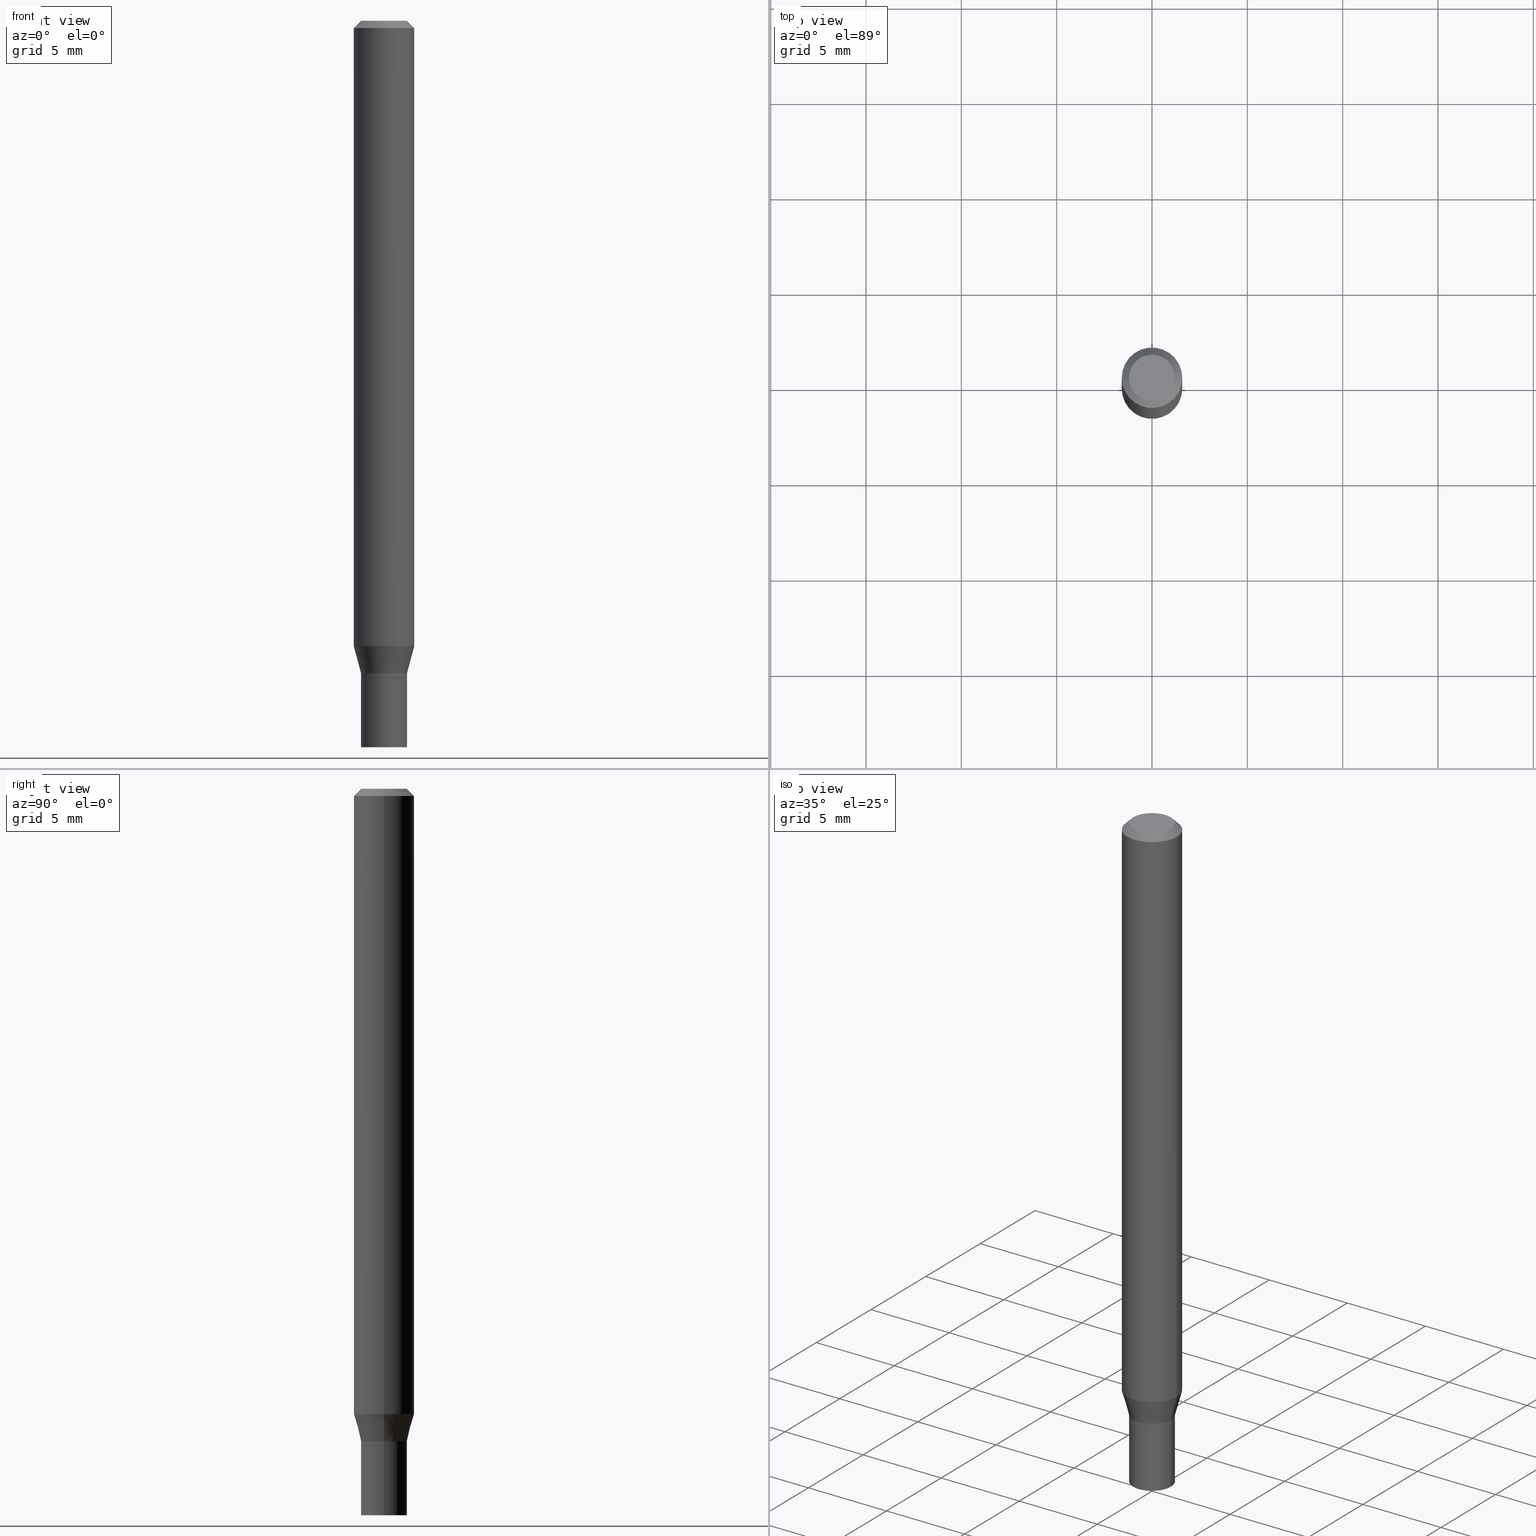
[diagram: canonical four-view strip — front | top / right | iso, engineering-drawing reading convention]
A machine part, canonical four-view strip (front | top / right | iso — engineering-drawing reading convention). The complete STEP part file that produces these views, byte-faithful:
ISO-10303-21;
HEADER;
FILE_DESCRIPTION (( 'STEP AP203' ),
    '1' );
FILE_NAME ('02430.STEP',
    '2024-03-18T20:33:25',
    ( '' ),
    ( '' ),
    'SwSTEP 2.0',
    'SolidWorks 2023',
    '' );
FILE_SCHEMA (( 'CONFIG_CONTROL_DESIGN' ));
ENDSEC;

DATA;
#1 = CONICAL_SURFACE ( 'NONE', #341, 0.06250000000000000000, 0.7853981633974457255 ) ;
#2 = CIRCLE ( 'NONE', #447, 0.04699999999999999317 ) ;
#3 = CC_DESIGN_PERSON_AND_ORGANIZATION_ASSIGNMENT ( #320, #48, ( #176 ) ) ;
#4 = DIRECTION ( 'NONE',  ( -2.445468806185136597E-29, 3.491481338843145583E-15, 1.000000000000000000 ) ) ;
#5 = DIRECTION ( 'NONE',  ( 1.000000000000000000, -6.982962677686266711E-15, 0.000000000000000000 ) ) ;
#6 = ORIENTED_EDGE ( 'NONE', *, *, #49, .F. ) ;
#7 = ADVANCED_FACE ( 'NONE', ( #379 ), #59, .T. ) ;
#8 = VECTOR ( 'NONE', #17, 39.37007874015748143 ) ;
#9 = ORIENTED_EDGE ( 'NONE', *, *, #111, .T. ) ;
#10 = DIRECTION ( 'NONE',  ( -2.445468806185136877E-29, 3.491481338843145188E-15, 1.000000000000000000 ) ) ;
#11 = CARTESIAN_POINT ( 'NONE',  ( -0.04749999999999993811, -4.214498965626852086E-15, -1.347000000000000197 ) ) ;
#12 = CARTESIAN_POINT ( 'NONE',  ( -0.04749999999999999362, 3.375077994860475429E-16, -2.336494167871079910E-30 ) ) ;
#13 = CIRCLE ( 'NONE', #257, 0.06250000000000000000 ) ;
#14 = CIRCLE ( 'NONE', #458, 0.04749999999999999362 ) ;
#15 = ORIENTED_EDGE ( 'NONE', *, *, #252, .F. ) ;
#16 = APPROVAL_DATE_TIME ( #89, #31 ) ;
#17 = DIRECTION ( 'NONE',  ( 0.7071067811865456854, -7.319954787623249734E-15, -0.7071067811865493491 ) ) ;
#18 = DIRECTION ( 'NONE',  ( -2.445468806185136597E-29, 3.491481338843145583E-15, 1.000000000000000000 ) ) ;
#19 = DIRECTION ( 'NONE',  ( 1.000000000000000000, -6.982962677686270655E-15, 0.000000000000000000 ) ) ;
#20 = CARTESIAN_POINT ( 'NONE',  ( 3.157147274436261961E-29, -4.507569577168097497E-15, -1.291019237886466442 ) ) ;
#21 = PERSON_AND_ORGANIZATION_ROLE ( 'design_owner' ) ;
#22 = FACE_OUTER_BOUND ( 'NONE', #236, .T. ) ;
#23 = APPROVAL_ROLE ( '' ) ;
#24 = ADVANCED_FACE ( 'NONE', ( #97 ), #439, .T. ) ;
#25 = DIRECTION ( 'NONE',  ( 1.000000000000000000, -6.982962677686265922E-15, 4.876176775795936353E-29 ) ) ;
#26 = DIRECTION ( 'NONE',  ( 1.000000000000000000, -6.982962677686266711E-15, 0.000000000000000000 ) ) ;
#27 = AXIS2_PLACEMENT_3D ( 'NONE', #36, #403, #19 ) ;
#28 = EDGE_CURVE ( 'NONE', #382, #120, #391, .T. ) ;
#29 = AXIS2_PLACEMENT_3D ( 'NONE', #155, #454, #358 ) ;
#30 = VERTEX_POINT ( 'NONE', #76 ) ;
#31 = APPROVAL ( #415, 'UNSPECIFIED' ) ;
#32 = AXIS2_PLACEMENT_3D ( 'NONE', #124, #55, #256 ) ;
#33 = APPROVAL_PERSON_ORGANIZATION ( #373, #202, #90 ) ;
#34 = ORIENTED_EDGE ( 'NONE', *, *, #310, .F. ) ;
#35 = CYLINDRICAL_SURFACE ( 'NONE', #268, 0.04749999999999999362 ) ;
#36 = CARTESIAN_POINT ( 'NONE',  ( 3.294046481931379390E-29, -4.703025363421717574E-15, -1.347000000000000197 ) ) ;
#37 = ORIENTED_EDGE ( 'NONE', *, *, #276, .T. ) ;
#38 = DESIGN_CONTEXT ( 'detailed design', #444, 'design' ) ;
#39 = DIRECTION ( 'NONE',  ( 1.000000000000000000, -6.982962677686270655E-15, 0.000000000000000000 ) ) ;
#40 = CARTESIAN_POINT ( 'NONE',  ( -0.04749999999999999362, 3.578768372314211492E-16, 7.877379304411263442E-17 ) ) ;
#41 = FACE_OUTER_BOUND ( 'NONE', #133, .T. ) ;
#42 = APPROVAL_DATE_TIME ( #218, #202 ) ;
#43 = FACE_OUTER_BOUND ( 'NONE', #66, .T. ) ;
#44 = PLANE ( 'NONE',  #277 ) ;
#45 = CONICAL_SURFACE ( 'NONE', #249, 0.04749999999999993811, 0.2617993877991481311 ) ;
#46 = CARTESIAN_POINT ( 'NONE',  ( 0.06250000000000000000, -4.811533449433679005E-16, -0.01499999999999999944 ) ) ;
#47 = PLANE ( 'NONE',  #115 ) ;
#48 = PERSON_AND_ORGANIZATION_ROLE ( 'creator' ) ;
#49 = EDGE_CURVE ( 'NONE', #77, #177, #214, .T. ) ;
#50 = PRODUCT_DEFINITION ( 'UNKNOWN', '', #176, #38 ) ;
#51 = CARTESIAN_POINT ( 'NONE',  ( 0.04749999999999999362, -4.035134999187576651E-16, 7.877379304411762643E-17 ) ) ;
#52 = COORDINATED_UNIVERSAL_TIME_OFFSET ( 5, 0, .BEHIND. ) ;
#53 = DIRECTION ( 'NONE',  ( 1.000000000000000000, -6.982962677686266711E-15, 4.876176775795935793E-29 ) ) ;
#54 = CALENDAR_DATE ( 2024, 18, 3 ) ;
#55 = DIRECTION ( 'NONE',  ( 2.438088387897960049E-29, -3.491481338843145188E-15, -1.000000000000000000 ) ) ;
#56 = CARTESIAN_POINT ( 'NONE',  ( -0.04699999999999999317, -4.403985091002901839E-15, -1.356999999999999984 ) ) ;
#57 = CARTESIAN_POINT ( 'NONE',  ( 0.06250000000000000000, -4.364351673553916694E-16, 3.047610484872459871E-30 ) ) ;
#58 = DIRECTION ( 'NONE',  ( 2.445468806185136597E-29, -3.491481338843145583E-15, -1.000000000000000000 ) ) ;
#59 = CYLINDRICAL_SURFACE ( 'NONE', #74, 0.06250000000000000000 ) ;
#60 = DIRECTION ( 'NONE',  ( 1.000000000000000000, -6.982962677686261977E-15, 0.000000000000000000 ) ) ;
#61 =( NAMED_UNIT ( * ) PLANE_ANGLE_UNIT ( ) SI_UNIT ( $, .RADIAN. ) );
#62 = CARTESIAN_POINT ( 'NONE',  ( -0.04749999999999999362, -4.650073293051385418E-15, -1.500000000000000222 ) ) ;
#63 = VECTOR ( 'NONE', #280, 39.37007874015748143 ) ;
#64 = APPROVAL_STATUS ( 'not_yet_approved' ) ;
#65 = ORIENTED_EDGE ( 'NONE', *, *, #69, .T. ) ;
#66 = EDGE_LOOP ( 'NONE', ( #296, #398 ) ) ;
#67 = CIRCLE ( 'NONE', #240, 0.04749999999999991729 ) ;
#68 = LOCAL_TIME ( 16, 33, 25.00000000000000000, #289 ) ;
#69 = EDGE_CURVE ( 'NONE', #347, #177, #221, .T. ) ;
#70 = DIRECTION ( 'NONE',  ( 1.000000000000000000, -6.982962677686261977E-15, 0.000000000000000000 ) ) ;
#71 = ORIENTED_EDGE ( 'NONE', *, *, #49, .T. ) ;
#72 = ORIENTED_EDGE ( 'NONE', *, *, #442, .F. ) ;
#73 = EDGE_LOOP ( 'NONE', ( #206, #167 ) ) ;
#74 = AXIS2_PLACEMENT_3D ( 'NONE', #200, #199, #465 ) ;
#75 = AXIS2_PLACEMENT_3D ( 'NONE', #340, #134, #270 ) ;
#76 = CARTESIAN_POINT ( 'NONE',  ( -0.04699999999999999317, -4.401335863828790638E-15, -1.356999999999999984 ) ) ;
#77 = VERTEX_POINT ( 'NONE', #229 ) ;
#78 = ADVANCED_FACE ( 'NONE', ( #81 ), #449, .T. ) ;
#79 = DIRECTION ( 'NONE',  ( -2.445468806185136877E-29, 3.491481338843145188E-15, 1.000000000000000000 ) ) ;
#80 = EDGE_LOOP ( 'NONE', ( #345, #139, #299, #383 ) ) ;
#81 = FACE_OUTER_BOUND ( 'NONE', #461, .T. ) ;
#82 = ADVANCED_FACE ( 'NONE', ( #370 ), #374, .T. ) ;
#83 = FACE_OUTER_BOUND ( 'NONE', #73, .T. ) ;
#84 = VECTOR ( 'NONE', #96, 39.37007874015748143 ) ;
#85 =( LENGTH_UNIT ( ) NAMED_UNIT ( * ) SI_UNIT ( $, .METRE. ) );
#86 = LINE ( 'NONE', #159, #352 ) ;
#87 = ADVANCED_FACE ( 'NONE', ( #43 ), #363, .F. ) ;
#88 = DIRECTION ( 'NONE',  ( -2.445468806185136597E-29, 3.491481338843145583E-15, 1.000000000000000000 ) ) ;
#89 = DATE_AND_TIME ( #164, #386 ) ;
#90 = APPROVAL_ROLE ( '' ) ;
#91 = DIRECTION ( 'NONE',  ( -2.445468806185136877E-29, 3.491481338843145188E-15, 1.000000000000000000 ) ) ;
#92 = CARTESIAN_POINT ( 'NONE',  ( -0.06250000000000000000, -1.835881688775309869E-15, -0.01499999999999999944 ) ) ;
#93 = LINE ( 'NONE', #180, #84 ) ;
#94 = AXIS2_PLACEMENT_3D ( 'NONE', #405, #118, #401 ) ;
#95 = DIRECTION ( 'NONE',  ( -2.445468806185136597E-29, 3.491481338843145583E-15, 1.000000000000000000 ) ) ;
#96 = DIRECTION ( 'NONE',  ( 0.2588190451025195182, 1.565188264969636759E-15, 0.9659258262890685343 ) ) ;
#97 = FACE_OUTER_BOUND ( 'NONE', #448, .T. ) ;
#98 = MECHANICAL_CONTEXT ( 'NONE', #418, 'mechanical' ) ;
#99 = ORIENTED_EDGE ( 'NONE', *, *, #413, .F. ) ;
#100 = CIRCLE ( 'NONE', #302, 0.04749999999999999362 ) ;
#101 = ADVANCED_FACE ( 'NONE', ( #410 ), #1, .T. ) ;
#102 =( GEOMETRIC_REPRESENTATION_CONTEXT ( 3 ) GLOBAL_UNCERTAINTY_ASSIGNED_CONTEXT ( ( #317 ) ) GLOBAL_UNIT_ASSIGNED_CONTEXT ( ( #295, #61, #419 ) ) REPRESENTATION_CONTEXT ( 'NONE', 'WORKASPACE' ) );
#103 = EDGE_CURVE ( 'NONE', #347, #130, #93, .T. ) ;
#104 = LINE ( 'NONE', #56, #63 ) ;
#105 = EDGE_CURVE ( 'NONE', #177, #136, #381, .T. ) ;
#106 = CIRCLE ( 'NONE', #195, 0.06250000000000000000 ) ;
#107 = VERTEX_POINT ( 'NONE', #112 ) ;
#108 = CARTESIAN_POINT ( 'NONE',  ( 0.04749999999999999362, -5.568912735454815688E-15, -1.500000000000000222 ) ) ;
#109 = EDGE_CURVE ( 'NONE', #120, #143, #346, .T. ) ;
#110 = ORIENTED_EDGE ( 'NONE', *, *, #210, .F. ) ;
#111 = EDGE_CURVE ( 'NONE', #432, #354, #400, .T. ) ;
#112 = CARTESIAN_POINT ( 'NONE',  ( -0.04749999999999999362, -4.650073293051385418E-15, -1.356999999999999984 ) ) ;
#113 = EDGE_LOOP ( 'NONE', ( #209, #384 ) ) ;
#114 = ORIENTED_EDGE ( 'NONE', *, *, #310, .T. ) ;
#115 = AXIS2_PLACEMENT_3D ( 'NONE', #290, #417, #226 ) ;
#116 = AXIS2_PLACEMENT_3D ( 'NONE', #460, #95, #187 ) ;
#117 = FACE_OUTER_BOUND ( 'NONE', #425, .T. ) ;
#118 = DIRECTION ( 'NONE',  ( -2.445468806185136597E-29, 3.491481338843145583E-15, 1.000000000000000000 ) ) ;
#119 = ORIENTED_EDGE ( 'NONE', *, *, #28, .F. ) ;
#120 = VERTEX_POINT ( 'NONE', #108 ) ;
#121 = CARTESIAN_POINT ( 'NONE',  ( 0.06250000000000000000, -4.888073874380388472E-16, -0.01499999999999999944 ) ) ;
#122 = EDGE_CURVE ( 'NONE', #120, #382, #194, .T. ) ;
#123 = CARTESIAN_POINT ( 'NONE',  ( 0.04699999999999999317, -5.066139422661402938E-15, -1.356999999999999984 ) ) ;
#124 = CARTESIAN_POINT ( 'NONE',  ( 3.316907271901307910E-16, 0.04749999999999526129, -1.357000000000000206 ) ) ;
#125 = DIRECTION ( 'NONE',  ( 1.000000000000000000, -6.982962677686267499E-15, 4.876176775795935793E-29 ) ) ;
#126 = ORGANIZATION ( 'UNSPECIFIED', 'UNSPECIFIED', '' ) ;
#127 = EDGE_CURVE ( 'NONE', #136, #130, #13, .T. ) ;
#128 = DIRECTION ( 'NONE',  ( 2.438088387897960049E-29, -3.491481338843145188E-15, -1.000000000000000000 ) ) ;
#129 = DIRECTION ( 'NONE',  ( 1.000000000000000000, -6.982962677686267499E-15, 4.884662768193073002E-29 ) ) ;
#130 = VERTEX_POINT ( 'NONE', #435 ) ;
#131 = CIRCLE ( 'NONE', #184, 0.04749999999999993811 ) ;
#132 = CONICAL_SURFACE ( 'NONE', #29, 0.04699999999999999317, 0.7853981633974739252 ) ;
#133 = EDGE_LOOP ( 'NONE', ( #351, #71, #175, #34 ) ) ;
#134 = DIRECTION ( 'NONE',  ( 0.000000000000000000, 0.000000000000000000, 1.000000000000000000 ) ) ;
#135 = ORIENTED_EDGE ( 'NONE', *, *, #350, .T. ) ;
#136 = VERTEX_POINT ( 'NONE', #278 ) ;
#137 = AXIS2_PLACEMENT_3D ( 'NONE', #251, #217, #361 ) ;
#138 = CC_DESIGN_APPROVAL ( #31, ( #50 ) ) ;
#139 = ORIENTED_EDGE ( 'NONE', *, *, #127, .T. ) ;
#140 = DIRECTION ( 'NONE',  ( -0.2588190451025195182, 5.211531920934539209E-15, 0.9659258262890685343 ) ) ;
#141 = EDGE_CURVE ( 'NONE', #30, #77, #104, .T. ) ;
#142 = ADVANCED_FACE ( 'NONE', ( #83 ), #453, .F. ) ;
#143 = VERTEX_POINT ( 'NONE', #364 ) ;
#144 = ORIENTED_EDGE ( 'NONE', *, *, #141, .F. ) ;
#145 = CC_DESIGN_PERSON_AND_ORGANIZATION_ASSIGNMENT ( #220, #327, ( #297 ) ) ;
#146 = DIRECTION ( 'NONE',  ( -2.445468806185136597E-29, 3.491481338843145583E-15, 1.000000000000000000 ) ) ;
#147 = ORIENTED_EDGE ( 'NONE', *, *, #252, .T. ) ;
#148 = VECTOR ( 'NONE', #140, 39.37007874015748143 ) ;
#149 = AXIS2_PLACEMENT_3D ( 'NONE', #228, #178, #371 ) ;
#150 = CARTESIAN_POINT ( 'NONE',  ( 3.668203209277705088E-31, -5.237222008264718399E-17, -0.01499999999999999944 ) ) ;
#151 = EDGE_CURVE ( 'NONE', #174, #77, #67, .T. ) ;
#152 = DIRECTION ( 'NONE',  ( -2.445468806185136597E-29, 3.491481338843145583E-15, 1.000000000000000000 ) ) ;
#153 = CARTESIAN_POINT ( 'NONE',  ( 3.668203209277705088E-31, -5.237222008264718399E-17, -0.01499999999999999944 ) ) ;
#154 = CARTESIAN_POINT ( 'NONE',  ( 3.294046481931379390E-29, -4.703025363421717574E-15, -1.347000000000000197 ) ) ;
#155 = CARTESIAN_POINT ( 'NONE',  ( 3.318501169993230375E-29, -4.737940176810148435E-15, -1.356999999999999984 ) ) ;
#156 = COORDINATED_UNIVERSAL_TIME_OFFSET ( 5, 0, .BEHIND. ) ;
#157 = CARTESIAN_POINT ( 'NONE',  ( 3.294046481931379390E-29, -4.703025363421717574E-15, -1.347000000000000197 ) ) ;
#158 = DATE_AND_TIME ( #367, #68 ) ;
#159 = CARTESIAN_POINT ( 'NONE',  ( -0.06250000000000000000, 4.440892098500626162E-16, -3.074334431409316114E-30 ) ) ;
#160 = DIRECTION ( 'NONE',  ( 1.000000000000000000, -6.982962677686265922E-15, 4.876176775795936353E-29 ) ) ;
#161 = VECTOR ( 'NONE', #79, 39.37007874015748143 ) ;
#162 = CARTESIAN_POINT ( 'NONE',  ( 0.04749999999999993811, -5.034716090611815085E-15, -1.347000000000000197 ) ) ;
#163 = VECTOR ( 'NONE', #451, 39.37007874015748143 ) ;
#164 = CALENDAR_DATE ( 2024, 18, 3 ) ;
#165 = FACE_OUTER_BOUND ( 'NONE', #397, .T. ) ;
#166 = DATE_AND_TIME ( #54, #348 ) ;
#167 = ORIENTED_EDGE ( 'NONE', *, *, #434, .T. ) ;
#168 = AXIS2_PLACEMENT_3D ( 'NONE', #188, #288, #25 ) ;
#169 = ORIENTED_EDGE ( 'NONE', *, *, #103, .F. ) ;
#170 = CIRCLE ( 'NONE', #312, 0.06250000000000000000 ) ;
#171 = ORIENTED_EDGE ( 'NONE', *, *, #103, .T. ) ;
#172 = APPROVAL_DATE_TIME ( #304, #267 ) ;
#173 = ADVANCED_FACE ( 'NONE', ( #117 ), #385, .T. ) ;
#174 = VERTEX_POINT ( 'NONE', #318 ) ;
#175 = ORIENTED_EDGE ( 'NONE', *, *, #69, .F. ) ;
#176 = PRODUCT_DEFINITION_FORMATION_WITH_SPECIFIED_SOURCE ( 'ANY', '', #286, .NOT_KNOWN. ) ;
#177 = VERTEX_POINT ( 'NONE', #11 ) ;
#178 = DIRECTION ( 'NONE',  ( -2.445468806185136597E-29, 3.491481338843145583E-15, 1.000000000000000000 ) ) ;
#179 = ORIENTED_EDGE ( 'NONE', *, *, #235, .F. ) ;
#180 = CARTESIAN_POINT ( 'NONE',  ( 0.04749999999999993811, -5.034716090611815085E-15, -1.347000000000000197 ) ) ;
#181 = LINE ( 'NONE', #12, #185 ) ;
#182 = APPROVAL_STATUS ( 'not_yet_approved' ) ;
#183 = EDGE_CURVE ( 'NONE', #342, #316, #100, .T. ) ;
#184 = AXIS2_PLACEMENT_3D ( 'NONE', #154, #409, #462 ) ;
#185 = VECTOR ( 'NONE', #253, 39.37007874015748143 ) ;
#186 = CYLINDRICAL_SURFACE ( 'NONE', #168, 0.04749999999999993117 ) ;
#187 = DIRECTION ( 'NONE',  ( 1.000000000000000000, -6.982962677686272233E-15, 0.000000000000000000 ) ) ;
#188 = CARTESIAN_POINT ( 'NONE',  ( 0.000000000000000000, 0.000000000000000000, 0.000000000000000000 ) ) ;
#189 = LINE ( 'NONE', #46, #8 ) ;
#190 = SECURITY_CLASSIFICATION_LEVEL ( 'unclassified' ) ;
#191 = FACE_OUTER_BOUND ( 'NONE', #113, .T. ) ;
#192 = CALENDAR_DATE ( 2024, 18, 3 ) ;
#193 = LINE ( 'NONE', #123, #239 ) ;
#194 = CIRCLE ( 'NONE', #207, 0.04749999999999999362 ) ;
#195 = AXIS2_PLACEMENT_3D ( 'NONE', #20, #319, #213 ) ;
#196 = PRODUCT_RELATED_PRODUCT_CATEGORY ( 'detail', '', ( #286 ) ) ;
#197 = DIRECTION ( 'NONE',  ( -2.445468806185136597E-29, 3.491481338843145583E-15, 1.000000000000000000 ) ) ;
#198 = PERSON_AND_ORGANIZATION_ROLE ( 'creator' ) ;
#199 = DIRECTION ( 'NONE',  ( -2.445468806185136597E-29, 3.491481338843145583E-15, 1.000000000000000000 ) ) ;
#200 = CARTESIAN_POINT ( 'NONE',  ( 0.000000000000000000, 0.000000000000000000, 0.000000000000000000 ) ) ;
#201 = LINE ( 'NONE', #57, #161 ) ;
#202 = APPROVAL ( #182, 'UNSPECIFIED' ) ;
#203 = EDGE_LOOP ( 'NONE', ( #147, #281, #349, #179 ) ) ;
#204 = ADVANCED_BREP_SHAPE_REPRESENTATION ( '02430', ( #395, #393, #75 ), #102 ) ;
#205 = ORIENTED_EDGE ( 'NONE', *, *, #431, .T. ) ;
#206 = ORIENTED_EDGE ( 'NONE', *, *, #183, .T. ) ;
#207 = AXIS2_PLACEMENT_3D ( 'NONE', #243, #396, #70 ) ;
#208 = AXIS2_PLACEMENT_3D ( 'NONE', #293, #455, #53 ) ;
#209 = ORIENTED_EDGE ( 'NONE', *, *, #416, .F. ) ;
#210 = EDGE_CURVE ( 'NONE', #177, #347, #131, .T. ) ;
#211 = CC_DESIGN_DATE_AND_TIME_ASSIGNMENT ( #158, #456, ( #297 ) ) ;
#212 = ORIENTED_EDGE ( 'NONE', *, *, #105, .F. ) ;
#213 = DIRECTION ( 'NONE',  ( 1.000000000000000000, -6.982962677686262766E-15, 0.000000000000000000 ) ) ;
#214 = LINE ( 'NONE', #359, #429 ) ;
#215 = DIRECTION ( 'NONE',  ( -2.445468806185136597E-29, 3.491481338843145583E-15, 1.000000000000000000 ) ) ;
#216 = DIRECTION ( 'NONE',  ( -2.438088387897960049E-29, 3.491481338843145188E-15, 1.000000000000000000 ) ) ;
#217 = DIRECTION ( 'NONE',  ( -2.445468806185136597E-29, 3.491481338843145583E-15, 1.000000000000000000 ) ) ;
#218 = DATE_AND_TIME ( #369, #464 ) ;
#219 = DIRECTION ( 'NONE',  ( -2.445468806185136597E-29, 3.491481338843145583E-15, 1.000000000000000000 ) ) ;
#220 = PERSON_AND_ORGANIZATION ( #315, #126 ) ;
#221 = CIRCLE ( 'NONE', #27, 0.04749999999999993811 ) ;
#222 = PRODUCT_DEFINITION_SHAPE ( 'NONE', 'NONE',  #50 ) ;
#223 = VECTOR ( 'NONE', #414, 39.37007874015748143 ) ;
#224 = DIRECTION ( 'NONE',  ( 1.000000000000000000, -6.982962677686273810E-15, 0.000000000000000000 ) ) ;
#225 = ADVANCED_FACE ( 'NONE', ( #269 ), #47, .F. ) ;
#226 = DIRECTION ( 'NONE',  ( 1.000000000000000000, -6.982962677686265922E-15, 4.876176775795935793E-29 ) ) ;
#227 = DIRECTION ( 'NONE',  ( -2.445468806185136597E-29, 3.491481338843145583E-15, 1.000000000000000000 ) ) ;
#228 = CARTESIAN_POINT ( 'NONE',  ( 3.318501169993230375E-29, -4.737940176810148435E-15, -1.356999999999999984 ) ) ;
#229 = CARTESIAN_POINT ( 'NONE',  ( -0.04749999999999991729, -4.398686636654680226E-15, -1.356500000000000039 ) ) ;
#230 = EDGE_CURVE ( 'NONE', #136, #432, #86, .T. ) ;
#231 = CC_DESIGN_PERSON_AND_ORGANIZATION_ASSIGNMENT ( #402, #198, ( #50 ) ) ;
#232 = ORIENTED_EDGE ( 'NONE', *, *, #105, .T. ) ;
#233 = CLOSED_SHELL ( 'NONE', ( #238, #300, #101, #7, #173, #390, #404, #466, #142, #325, #24, #82 ) ) ;
#234 = DIRECTION ( 'NONE',  ( 1.000000000000000000, -6.982962677686267499E-15, 4.884662768193073002E-29 ) ) ;
#235 = EDGE_CURVE ( 'NONE', #130, #354, #201, .T. ) ;
#236 = EDGE_LOOP ( 'NONE', ( #212, #237, #171, #298 ) ) ;
#237 = ORIENTED_EDGE ( 'NONE', *, *, #210, .T. ) ;
#238 = ADVANCED_FACE ( 'NONE', ( #41 ), #186, .T. ) ;
#239 = VECTOR ( 'NONE', #261, 39.37007874015748143 ) ;
#240 = AXIS2_PLACEMENT_3D ( 'NONE', #335, #146, #445 ) ;
#241 = LOCAL_TIME ( 16, 33, 25.00000000000000000, #156 ) ;
#242 = ORIENTED_EDGE ( 'NONE', *, *, #28, .T. ) ;
#243 = CARTESIAN_POINT ( 'NONE',  ( 3.668203209277704895E-29, -5.237222008264718177E-15, -1.500000000000000222 ) ) ;
#244 = ORIENTED_EDGE ( 'NONE', *, *, #350, .F. ) ;
#245 = CARTESIAN_POINT ( 'NONE',  ( 3.157147274436261961E-29, -4.507569577168097497E-15, -1.291019237886466442 ) ) ;
#246 = ORIENTED_EDGE ( 'NONE', *, *, #183, .F. ) ;
#247 = AXIS2_PLACEMENT_3D ( 'NONE', #250, #215, #39 ) ;
#248 = CARTESIAN_POINT ( 'NONE',  ( -1.926388536342670348E-45, 2.750372284034196662E-31, 7.877379304411503798E-17 ) ) ;
#249 = AXIS2_PLACEMENT_3D ( 'NONE', #157, #197, #372 ) ;
#250 = CARTESIAN_POINT ( 'NONE',  ( 3.294046481931379390E-29, -4.703025363421717574E-15, -1.347000000000000197 ) ) ;
#251 = CARTESIAN_POINT ( 'NONE',  ( 3.668203209277704895E-29, -5.237222008264718177E-15, -1.500000000000000222 ) ) ;
#252 = EDGE_CURVE ( 'NONE', #130, #136, #106, .T. ) ;
#253 = DIRECTION ( 'NONE',  ( -2.445468806185136877E-29, 3.491481338843145188E-15, 1.000000000000000000 ) ) ;
#254 = PERSON_AND_ORGANIZATION ( #315, #126 ) ;
#255 = FACE_OUTER_BOUND ( 'NONE', #306, .T. ) ;
#256 = DIRECTION ( 'NONE',  ( -1.000000000000000000, 6.982962677686265922E-15, -4.876176775795935793E-29 ) ) ;
#257 = AXIS2_PLACEMENT_3D ( 'NONE', #245, #273, #314 ) ;
#258 = CIRCLE ( 'NONE', #343, 0.04749999999999999362 ) ;
#259 = CARTESIAN_POINT ( 'NONE',  ( 0.04749999999999993117, -3.316907271900971659E-16, 2.316183968503066279E-30 ) ) ;
#260 = DIRECTION ( 'NONE',  ( -1.000000000000000000, 6.982962677686265922E-15, -4.876176775795935793E-29 ) ) ;
#261 = DIRECTION ( 'NONE',  ( 0.7071067811865656694, -2.468850131082446387E-15, 0.7071067811865294761 ) ) ;
#262 = DIRECTION ( 'NONE',  ( 2.445468806185136597E-29, -3.491481338843145583E-15, -1.000000000000000000 ) ) ;
#263 = ORIENTED_EDGE ( 'NONE', *, *, #271, .F. ) ;
#264 = FACE_OUTER_BOUND ( 'NONE', #80, .T. ) ;
#265 = EDGE_LOOP ( 'NONE', ( #438, #119 ) ) ;
#266 = AXIS2_PLACEMENT_3D ( 'NONE', #328, #128, #260 ) ;
#267 = APPROVAL ( #64, 'UNSPECIFIED' ) ;
#268 = AXIS2_PLACEMENT_3D ( 'NONE', #407, #88, #125 ) ;
#269 = FACE_OUTER_BOUND ( 'NONE', #265, .T. ) ;
#270 = DIRECTION ( 'NONE',  ( 1.000000000000000000, 0.000000000000000000, 0.000000000000000000 ) ) ;
#271 = EDGE_CURVE ( 'NONE', #77, #174, #424, .T. ) ;
#272 = ORIENTED_EDGE ( 'NONE', *, *, #271, .T. ) ;
#273 = DIRECTION ( 'NONE',  ( -2.445468806185136597E-29, 3.491481338843145583E-15, 1.000000000000000000 ) ) ;
#274 = CARTESIAN_POINT ( 'NONE',  ( 0.04749999999999999362, -3.316907271900976589E-16, 2.316183968503069081E-30 ) ) ;
#275 = ORIENTED_EDGE ( 'NONE', *, *, #151, .F. ) ;
#276 = EDGE_CURVE ( 'NONE', #30, #279, #2, .T. ) ;
#277 = AXIS2_PLACEMENT_3D ( 'NONE', #446, #216, #329 ) ;
#278 = CARTESIAN_POINT ( 'NONE',  ( -0.06250000000000000000, -4.063480367318034881E-15, -1.291019237886466442 ) ) ;
#279 = VERTEX_POINT ( 'NONE', #459 ) ;
#280 = DIRECTION ( 'NONE',  ( -0.7071067811865656694, 7.493145998870420424E-15, 0.7071067811865294761 ) ) ;
#281 = ORIENTED_EDGE ( 'NONE', *, *, #230, .T. ) ;
#282 = CARTESIAN_POINT ( 'NONE',  ( 0.000000000000000000, 0.000000000000000000, 0.000000000000000000 ) ) ;
#283 = CONICAL_SURFACE ( 'NONE', #412, 0.06250000000000000000, 0.7853981633974457255 ) ;
#284 = EDGE_LOOP ( 'NONE', ( #388, #205, #311, #72 ) ) ;
#285 = CARTESIAN_POINT ( 'NONE',  ( 3.318501169993230375E-29, -4.737940176810148435E-15, -1.356999999999999984 ) ) ;
#286 = PRODUCT ( '02430', '02430', '', ( #98 ) ) ;
#287 = DIRECTION ( 'NONE',  ( 1.000000000000000000, -6.982962677686272233E-15, 0.000000000000000000 ) ) ;
#288 = DIRECTION ( 'NONE',  ( -2.445468806185136597E-29, 3.491481338843145583E-15, 1.000000000000000000 ) ) ;
#289 = COORDINATED_UNIVERSAL_TIME_OFFSET ( 5, 0, .BEHIND. ) ;
#290 = CARTESIAN_POINT ( 'NONE',  ( 3.576687321579069994E-29, -5.368277968210015545E-15, -1.500000000000000222 ) ) ;
#291 = AXIS2_PLACEMENT_3D ( 'NONE', #389, #4, #5 ) ;
#292 = CC_DESIGN_APPROVAL ( #202, ( #176 ) ) ;
#293 = CARTESIAN_POINT ( 'NONE',  ( 0.000000000000000000, 0.000000000000000000, 0.000000000000000000 ) ) ;
#294 = ORIENTED_EDGE ( 'NONE', *, *, #431, .F. ) ;
#295 =( CONVERSION_BASED_UNIT ( 'INCH', #326 ) LENGTH_UNIT ( ) NAMED_UNIT ( #356 ) );
#296 = ORIENTED_EDGE ( 'NONE', *, *, #437, .T. ) ;
#297 = SECURITY_CLASSIFICATION ( '', '', #190 ) ;
#298 = ORIENTED_EDGE ( 'NONE', *, *, #127, .F. ) ;
#299 = ORIENTED_EDGE ( 'NONE', *, *, #235, .T. ) ;
#300 = ADVANCED_FACE ( 'NONE', ( #255 ), #132, .T. ) ;
#301 = ORIENTED_EDGE ( 'NONE', *, *, #313, .F. ) ;
#302 = AXIS2_PLACEMENT_3D ( 'NONE', #248, #399, #129 ) ;
#303 = ADVANCED_FACE ( 'NONE', ( #368 ), #35, .T. ) ;
#304 = DATE_AND_TIME ( #192, #241 ) ;
#305 = DIRECTION ( 'NONE',  ( -2.445468806185136877E-29, 3.491481338843145188E-15, 1.000000000000000000 ) ) ;
#306 = EDGE_LOOP ( 'NONE', ( #433, #450, #275, #99 ) ) ;
#307 = CC_DESIGN_PERSON_AND_ORGANIZATION_ASSIGNMENT ( #426, #21, ( #286 ) ) ;
#308 = CARTESIAN_POINT ( 'NONE',  ( -0.04749999999999993811, -4.365517563935670081E-15, -1.347000000000000197 ) ) ;
#309 = EDGE_LOOP ( 'NONE', ( #355, #135, #441, #394 ) ) ;
#310 = EDGE_CURVE ( 'NONE', #174, #347, #365, .T. ) ;
#311 = ORIENTED_EDGE ( 'NONE', *, *, #357, .T. ) ;
#312 = AXIS2_PLACEMENT_3D ( 'NONE', #150, #219, #26 ) ;
#313 = EDGE_CURVE ( 'NONE', #107, #143, #392, .T. ) ;
#314 = DIRECTION ( 'NONE',  ( 1.000000000000000000, -6.982962677686262766E-15, 0.000000000000000000 ) ) ;
#315 = PERSON ( 'UNSPECIFIED', 'UNSPECIFIED', 'UNSPECIFIED', ('UNSPECIFIED'), ('UNSPECIFIED'), ('UNSPECIFIED') ) ;
#316 = VERTEX_POINT ( 'NONE', #51 ) ;
#317 = UNCERTAINTY_MEASURE_WITH_UNIT (LENGTH_MEASURE( 1.000000000000000082E-05 ), #295, 'distance_accuracy_value', 'NONE');
#318 = CARTESIAN_POINT ( 'NONE',  ( 0.04749999999999991729, -5.067885163330824442E-15, -1.356500000000000039 ) ) ;
#319 = DIRECTION ( 'NONE',  ( -2.445468806185136597E-29, 3.491481338843145583E-15, 1.000000000000000000 ) ) ;
#320 = PERSON_AND_ORGANIZATION ( #315, #126 ) ;
#321 = AXIS2_PLACEMENT_3D ( 'NONE', #282, #227, #452 ) ;
#322 = CARTESIAN_POINT ( 'NONE',  ( 0.000000000000000000, 0.000000000000000000, 0.000000000000000000 ) ) ;
#323 = CC_DESIGN_APPROVAL ( #267, ( #297 ) ) ;
#324 = CYLINDRICAL_SURFACE ( 'NONE', #208, 0.06250000000000000000 ) ;
#325 = ADVANCED_FACE ( 'NONE', ( #191 ), #44, .F. ) ;
#326 = LENGTH_MEASURE_WITH_UNIT ( LENGTH_MEASURE( 0.02539999999999999897 ), #85 );
#327 = PERSON_AND_ORGANIZATION_ROLE ( 'classification_officer' ) ;
#328 = CARTESIAN_POINT ( 'NONE',  ( 3.316907271900976096E-16, 0.04749999999999999362, -1.264584670729918775E-16 ) ) ;
#329 = DIRECTION ( 'NONE',  ( 1.000000000000000000, -6.982962677686265922E-15, 4.876176775795935793E-29 ) ) ;
#330 = APPLICATION_PROTOCOL_DEFINITION ( 'international standard', 'config_control_design', 1994, #418 ) ;
#331 = CARTESIAN_POINT ( 'NONE',  ( -0.06250000000000000000, 3.840629472727444916E-16, -0.01499999999999999944 ) ) ;
#332 = CARTESIAN_POINT ( 'NONE',  ( 3.668203209277705088E-31, -5.237222008264718399E-17, -0.01499999999999999944 ) ) ;
#333 = CLOSED_SHELL ( 'NONE', ( #303, #225, #78, #87 ) ) ;
#334 = CIRCLE ( 'NONE', #116, 0.04699999999999999317 ) ;
#335 = CARTESIAN_POINT ( 'NONE',  ( 3.317278435590138134E-29, -4.736194436140727720E-15, -1.356500000000000039 ) ) ;
#336 = PERSON_AND_ORGANIZATION ( #315, #126 ) ;
#337 = DIRECTION ( 'NONE',  ( -1.000000000000000000, 6.982962677686266711E-15, 0.000000000000000000 ) ) ;
#338 = CARTESIAN_POINT ( 'NONE',  ( -1.926388536342670348E-45, 2.750372284034196662E-31, 7.877379304411503798E-17 ) ) ;
#339 = CC_DESIGN_DATE_AND_TIME_ASSIGNMENT ( #166, #362, ( #50 ) ) ;
#340 = CARTESIAN_POINT ( 'NONE',  ( 0.000000000000000000, 0.000000000000000000, 0.000000000000000000 ) ) ;
#341 = AXIS2_PLACEMENT_3D ( 'NONE', #332, #262, #421 ) ;
#342 = VERTEX_POINT ( 'NONE', #40 ) ;
#343 = AXIS2_PLACEMENT_3D ( 'NONE', #366, #380, #60 ) ;
#344 = CC_DESIGN_PERSON_AND_ORGANIZATION_ASSIGNMENT ( #254, #406, ( #176 ) ) ;
#345 = ORIENTED_EDGE ( 'NONE', *, *, #230, .F. ) ;
#346 = LINE ( 'NONE', #274, #423 ) ;
#347 = VERTEX_POINT ( 'NONE', #162 ) ;
#348 = LOCAL_TIME ( 16, 33, 25.00000000000000000, #408 ) ;
#349 = ORIENTED_EDGE ( 'NONE', *, *, #357, .F. ) ;
#350 = EDGE_CURVE ( 'NONE', #382, #107, #181, .T. ) ;
#351 = ORIENTED_EDGE ( 'NONE', *, *, #151, .T. ) ;
#352 = VECTOR ( 'NONE', #91, 39.37007874015748143 ) ;
#353 = APPROVAL_PERSON_ORGANIZATION ( #336, #31, #23 ) ;
#354 = VERTEX_POINT ( 'NONE', #121 ) ;
#355 = ORIENTED_EDGE ( 'NONE', *, *, #122, .T. ) ;
#356 = DIMENSIONAL_EXPONENTS ( 1.000000000000000000, 0.000000000000000000, 0.000000000000000000, 0.000000000000000000, 0.000000000000000000, 0.000000000000000000, 0.000000000000000000 ) ;
#357 = EDGE_CURVE ( 'NONE', #354, #432, #170, .T. ) ;
#358 = DIRECTION ( 'NONE',  ( 1.000000000000000000, -6.982962677686272233E-15, 0.000000000000000000 ) ) ;
#359 = CARTESIAN_POINT ( 'NONE',  ( -0.04749999999999993117, 3.375077994860470992E-16, -2.336494167871077107E-30 ) ) ;
#360 = CARTESIAN_POINT ( 'NONE',  ( 3.317278435590138134E-29, -4.736194436140727720E-15, -1.356500000000000039 ) ) ;
#361 = DIRECTION ( 'NONE',  ( 1.000000000000000000, -6.982962677686261977E-15, 0.000000000000000000 ) ) ;
#362 = DATE_TIME_ROLE ( 'creation_date' ) ;
#363 = PLANE ( 'NONE',  #32 ) ;
#364 = CARTESIAN_POINT ( 'NONE',  ( 0.04749999999999999362, -5.069630904000245946E-15, -1.356999999999999984 ) ) ;
#365 = LINE ( 'NONE', #259, #223 ) ;
#366 = CARTESIAN_POINT ( 'NONE',  ( 3.318501169993230375E-29, -4.737940176810148435E-15, -1.356999999999999984 ) ) ;
#367 = CALENDAR_DATE ( 2024, 18, 3 ) ;
#368 = FACE_OUTER_BOUND ( 'NONE', #309, .T. ) ;
#369 = CALENDAR_DATE ( 2024, 18, 3 ) ;
#370 = FACE_OUTER_BOUND ( 'NONE', #428, .T. ) ;
#371 = DIRECTION ( 'NONE',  ( 1.000000000000000000, -6.982962677686261977E-15, 0.000000000000000000 ) ) ;
#372 = DIRECTION ( 'NONE',  ( 1.000000000000000000, -6.982962677686270655E-15, 0.000000000000000000 ) ) ;
#373 = PERSON_AND_ORGANIZATION ( #315, #126 ) ;
#374 = CYLINDRICAL_SURFACE ( 'NONE', #463, 0.04749999999999993117 ) ;
#375 = APPLICATION_PROTOCOL_DEFINITION ( 'international standard', 'config_control_design', 1994, #444 ) ;
#376 = LINE ( 'NONE', #331, #163 ) ;
#377 = COORDINATED_UNIVERSAL_TIME_OFFSET ( 5, 0, .BEHIND. ) ;
#378 = CC_DESIGN_SECURITY_CLASSIFICATION ( #297, ( #176 ) ) ;
#379 = FACE_OUTER_BOUND ( 'NONE', #203, .T. ) ;
#380 = DIRECTION ( 'NONE',  ( -2.445468806185136597E-29, 3.491481338843145583E-15, 1.000000000000000000 ) ) ;
#381 = LINE ( 'NONE', #308, #148 ) ;
#382 = VERTEX_POINT ( 'NONE', #62 ) ;
#383 = ORIENTED_EDGE ( 'NONE', *, *, #111, .F. ) ;
#384 = ORIENTED_EDGE ( 'NONE', *, *, #276, .F. ) ;
#385 = CONICAL_SURFACE ( 'NONE', #247, 0.04749999999999993811, 0.2617993877991481311 ) ;
#386 = LOCAL_TIME ( 16, 33, 25.00000000000000000, #52 ) ;
#387 = PERSON_AND_ORGANIZATION ( #315, #126 ) ;
#388 = ORIENTED_EDGE ( 'NONE', *, *, #434, .F. ) ;
#389 = CARTESIAN_POINT ( 'NONE',  ( 3.668203209277705088E-31, -5.237222008264718399E-17, -0.01499999999999999944 ) ) ;
#390 = ADVANCED_FACE ( 'NONE', ( #22 ), #45, .T. ) ;
#391 = CIRCLE ( 'NONE', #137, 0.04749999999999999362 ) ;
#392 = CIRCLE ( 'NONE', #149, 0.04749999999999999362 ) ;
#393 = MANIFOLD_SOLID_BREP ( 'Body-Move/Copy2[2]', #233 ) ;
#394 = ORIENTED_EDGE ( 'NONE', *, *, #109, .F. ) ;
#395 = MANIFOLD_SOLID_BREP ( 'Body-Move/Copy2[1]', #333 ) ;
#396 = DIRECTION ( 'NONE',  ( -2.445468806185136597E-29, 3.491481338843145583E-15, 1.000000000000000000 ) ) ;
#397 = EDGE_LOOP ( 'NONE', ( #294, #246, #427, #9 ) ) ;
#398 = ORIENTED_EDGE ( 'NONE', *, *, #313, .T. ) ;
#399 = DIRECTION ( 'NONE',  ( -2.445468806185136597E-29, 3.491481338843145583E-15, 1.000000000000000000 ) ) ;
#400 = CIRCLE ( 'NONE', #291, 0.06250000000000000000 ) ;
#401 = DIRECTION ( 'NONE',  ( 1.000000000000000000, -6.982962677686272233E-15, 0.000000000000000000 ) ) ;
#402 = PERSON_AND_ORGANIZATION ( #315, #126 ) ;
#403 = DIRECTION ( 'NONE',  ( -2.445468806185136597E-29, 3.491481338843145583E-15, 1.000000000000000000 ) ) ;
#404 = ADVANCED_FACE ( 'NONE', ( #264 ), #324, .T. ) ;
#405 = CARTESIAN_POINT ( 'NONE',  ( 3.318501169993230375E-29, -4.737940176810148435E-15, -1.356999999999999984 ) ) ;
#406 = PERSON_AND_ORGANIZATION_ROLE ( 'design_supplier' ) ;
#407 = CARTESIAN_POINT ( 'NONE',  ( 0.000000000000000000, 0.000000000000000000, 0.000000000000000000 ) ) ;
#408 = COORDINATED_UNIVERSAL_TIME_OFFSET ( 5, 0, .BEHIND. ) ;
#409 = DIRECTION ( 'NONE',  ( -2.445468806185136597E-29, 3.491481338843145583E-15, 1.000000000000000000 ) ) ;
#410 = FACE_OUTER_BOUND ( 'NONE', #284, .T. ) ;
#411 = ORIENTED_EDGE ( 'NONE', *, *, #109, .T. ) ;
#412 = AXIS2_PLACEMENT_3D ( 'NONE', #153, #58, #337 ) ;
#413 = EDGE_CURVE ( 'NONE', #279, #174, #193, .T. ) ;
#414 = DIRECTION ( 'NONE',  ( -2.445468806185136877E-29, 3.491481338843145188E-15, 1.000000000000000000 ) ) ;
#415 = APPROVAL_STATUS ( 'not_yet_approved' ) ;
#416 = EDGE_CURVE ( 'NONE', #279, #30, #334, .T. ) ;
#417 = DIRECTION ( 'NONE',  ( -2.438088387897960049E-29, 3.491481338843145188E-15, 1.000000000000000000 ) ) ;
#418 = APPLICATION_CONTEXT ( 'configuration controlled 3d designs of mechanical parts and assemblies' ) ;
#419 =( NAMED_UNIT ( * ) SI_UNIT ( $, .STERADIAN. ) SOLID_ANGLE_UNIT ( ) );
#420 = DIRECTION ( 'NONE',  ( -2.445468806185136597E-29, 3.491481338843145583E-15, 1.000000000000000000 ) ) ;
#421 = DIRECTION ( 'NONE',  ( -1.000000000000000000, 6.982962677686266711E-15, 0.000000000000000000 ) ) ;
#422 = APPROVAL_ROLE ( '' ) ;
#423 = VECTOR ( 'NONE', #305, 39.37007874015748143 ) ;
#424 = CIRCLE ( 'NONE', #440, 0.04749999999999991729 ) ;
#425 = EDGE_LOOP ( 'NONE', ( #65, #232, #15, #169 ) ) ;
#426 = PERSON_AND_ORGANIZATION ( #315, #126 ) ;
#427 = ORIENTED_EDGE ( 'NONE', *, *, #442, .T. ) ;
#428 = EDGE_LOOP ( 'NONE', ( #6, #272, #114, #110 ) ) ;
#429 = VECTOR ( 'NONE', #10, 39.37007874015748143 ) ;
#430 = APPROVAL_PERSON_ORGANIZATION ( #387, #267, #422 ) ;
#431 = EDGE_CURVE ( 'NONE', #316, #354, #189, .T. ) ;
#432 = VERTEX_POINT ( 'NONE', #92 ) ;
#433 = ORIENTED_EDGE ( 'NONE', *, *, #416, .T. ) ;
#434 = EDGE_CURVE ( 'NONE', #316, #342, #14, .T. ) ;
#435 = CARTESIAN_POINT ( 'NONE',  ( 0.06250000000000000000, -4.944004744523489167E-15, -1.291019237886466442 ) ) ;
#436 = SHAPE_DEFINITION_REPRESENTATION ( #222, #204 ) ;
#437 = EDGE_CURVE ( 'NONE', #143, #107, #258, .T. ) ;
#438 = ORIENTED_EDGE ( 'NONE', *, *, #122, .F. ) ;
#439 = CONICAL_SURFACE ( 'NONE', #94, 0.04699999999999999317, 0.7853981633974739252 ) ;
#440 = AXIS2_PLACEMENT_3D ( 'NONE', #360, #152, #224 ) ;
#441 = ORIENTED_EDGE ( 'NONE', *, *, #437, .F. ) ;
#442 = EDGE_CURVE ( 'NONE', #342, #432, #376, .T. ) ;
#443 = ORIENTED_EDGE ( 'NONE', *, *, #413, .T. ) ;
#444 = APPLICATION_CONTEXT ( 'configuration controlled 3d designs of mechanical parts and assemblies' ) ;
#445 = DIRECTION ( 'NONE',  ( 1.000000000000000000, -6.982962677686273810E-15, 0.000000000000000000 ) ) ;
#446 = CARTESIAN_POINT ( 'NONE',  ( 3.318501169993230375E-29, -4.737940176810148435E-15, -1.356999999999999984 ) ) ;
#447 = AXIS2_PLACEMENT_3D ( 'NONE', #285, #18, #287 ) ;
#448 = EDGE_LOOP ( 'NONE', ( #144, #37, #443, #263 ) ) ;
#449 = CYLINDRICAL_SURFACE ( 'NONE', #321, 0.04749999999999999362 ) ;
#450 = ORIENTED_EDGE ( 'NONE', *, *, #141, .T. ) ;
#451 = DIRECTION ( 'NONE',  ( -0.7071067811865456854, 2.468850131082237733E-15, -0.7071067811865493491 ) ) ;
#452 = DIRECTION ( 'NONE',  ( 1.000000000000000000, -6.982962677686267499E-15, 4.876176775795935793E-29 ) ) ;
#453 = PLANE ( 'NONE',  #266 ) ;
#454 = DIRECTION ( 'NONE',  ( -2.445468806185136597E-29, 3.491481338843145583E-15, 1.000000000000000000 ) ) ;
#455 = DIRECTION ( 'NONE',  ( -2.445468806185136597E-29, 3.491481338843145583E-15, 1.000000000000000000 ) ) ;
#456 = DATE_TIME_ROLE ( 'classification_date' ) ;
#457 = DIRECTION ( 'NONE',  ( -2.445468806185136597E-29, 3.491481338843145583E-15, 1.000000000000000000 ) ) ;
#458 = AXIS2_PLACEMENT_3D ( 'NONE', #338, #420, #234 ) ;
#459 = CARTESIAN_POINT ( 'NONE',  ( 0.04699999999999999317, -5.066139422661402938E-15, -1.356999999999999984 ) ) ;
#460 = CARTESIAN_POINT ( 'NONE',  ( 3.318501169993230375E-29, -4.737940176810148435E-15, -1.356999999999999984 ) ) ;
#461 = EDGE_LOOP ( 'NONE', ( #244, #242, #411, #301 ) ) ;
#462 = DIRECTION ( 'NONE',  ( 1.000000000000000000, -6.982962677686270655E-15, 0.000000000000000000 ) ) ;
#463 = AXIS2_PLACEMENT_3D ( 'NONE', #322, #457, #160 ) ;
#464 = LOCAL_TIME ( 16, 33, 25.00000000000000000, #377 ) ;
#465 = DIRECTION ( 'NONE',  ( 1.000000000000000000, -6.982962677686266711E-15, 4.876176775795935793E-29 ) ) ;
#466 = ADVANCED_FACE ( 'NONE', ( #165 ), #283, .T. ) ;
ENDSEC;
END-ISO-10303-21;
